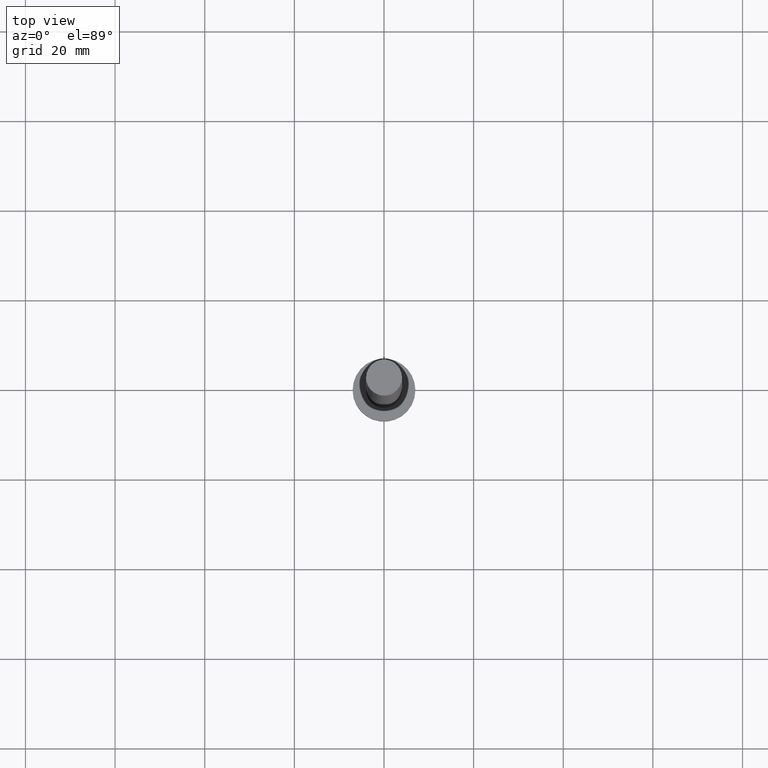
[diagram: clean part render]
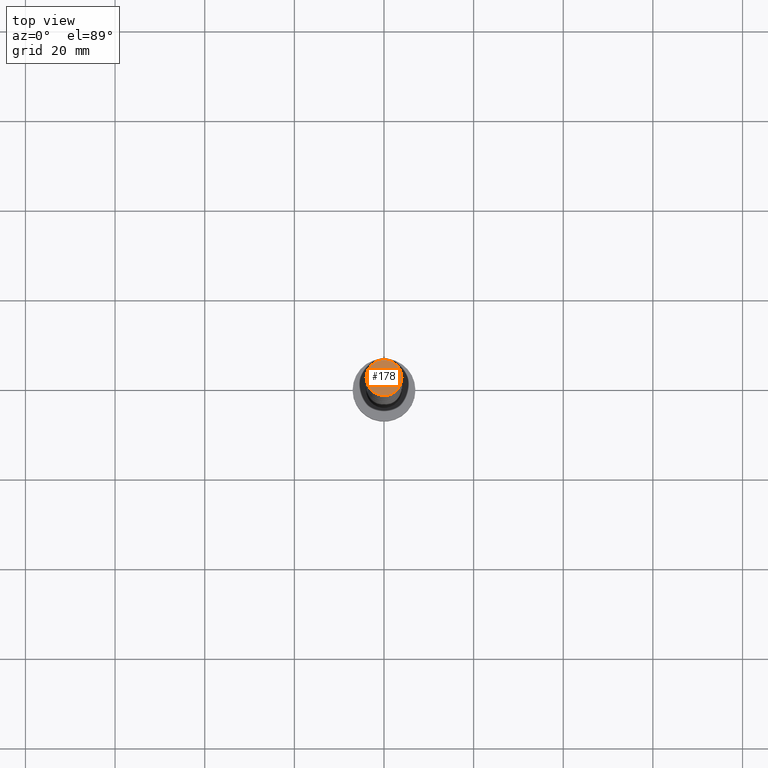
[diagram: same view with one face highlighted and labeled with its STEP entity id]
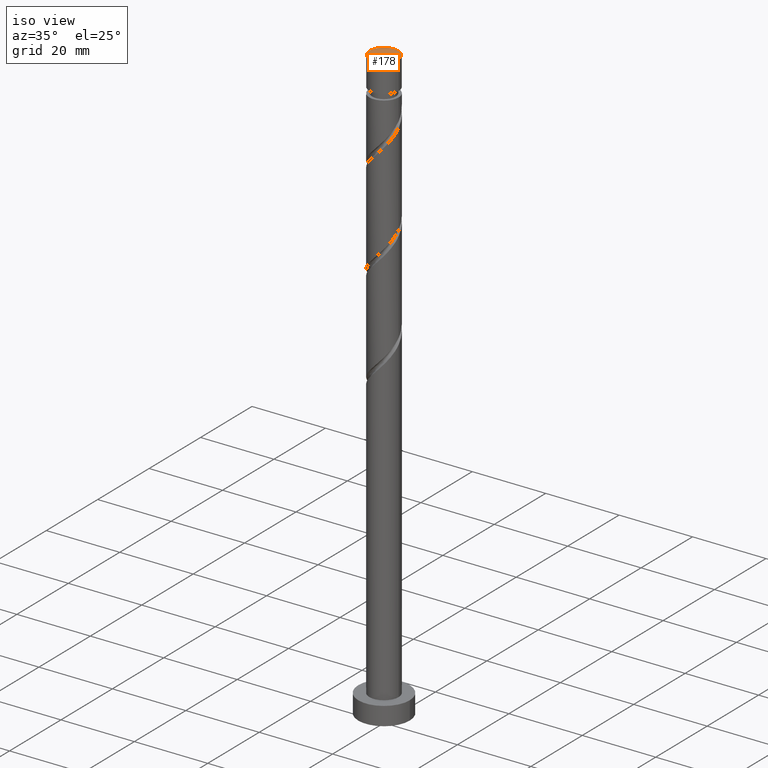
[diagram: same view with one face highlighted and labeled with its STEP entity id]
A machine part, top view. The second image highlights one B-rep face of the part: STEP entity #178.
A second angle (iso view) of the same face is appended — the face is thin or edge-on in the first view.
In plain terms, the highlighted planar face has unit normal (0, 0, 1).
Its self-contained STEP definition (entity closure, byte-faithful):
#178 = ADVANCED_FACE ( 'NONE', ( #541 ), #1055, .T. ) ;
#180 = EDGE_LOOP ( 'NONE', ( #781, #1140 ) ) ;
#244 = AXIS2_PLACEMENT_3D ( 'NONE', #583, #452, #1473 ) ;
#249 = DIRECTION ( 'NONE',  ( 0.000000000000000000, 0.000000000000000000, 1.000000000000000000 ) ) ;
#260 = CARTESIAN_POINT ( 'NONE',  ( 0.000000000000000000, 0.000000000000000000, 162.0000000000000000 ) ) ;
#373 = DIRECTION ( 'NONE',  ( 1.000000000000000000, 0.000000000000000000, 0.000000000000000000 ) ) ;
#381 = CARTESIAN_POINT ( 'NONE',  ( 0.000000000000000000, 0.000000000000000000, 162.0000000000000000 ) ) ;
#411 = CARTESIAN_POINT ( 'NONE',  ( -4.000000000000000000, 0.000000000000000000, 162.0000000000000000 ) ) ;
#452 = DIRECTION ( 'NONE',  ( 0.000000000000000000, 0.000000000000000000, 1.000000000000000000 ) ) ;
#529 = AXIS2_PLACEMENT_3D ( 'NONE', #381, #533, #373 ) ;
#533 = DIRECTION ( 'NONE',  ( 0.000000000000000000, 0.000000000000000000, 1.000000000000000000 ) ) ;
#541 = FACE_OUTER_BOUND ( 'NONE', #180, .T. ) ;
#583 = CARTESIAN_POINT ( 'NONE',  ( 0.000000000000000000, 0.000000000000000000, 162.0000000000000000 ) ) ;
#736 = AXIS2_PLACEMENT_3D ( 'NONE', #260, #249, #786 ) ;
#778 = EDGE_CURVE ( 'NONE', #794, #1487, #1514, .T. ) ;
#781 = ORIENTED_EDGE ( 'NONE', *, *, #1304, .T. ) ;
#786 = DIRECTION ( 'NONE',  ( 1.000000000000000000, 0.000000000000000000, -0.000000000000000000 ) ) ;
#794 = VERTEX_POINT ( 'NONE', #975 ) ;
#975 = CARTESIAN_POINT ( 'NONE',  ( 4.000000000000000000, 4.898587196589412829E-16, 162.0000000000000000 ) ) ;
#1019 = CIRCLE ( 'NONE', #529, 4.000000000000000000 ) ;
#1055 = PLANE ( 'NONE',  #736 ) ;
#1140 = ORIENTED_EDGE ( 'NONE', *, *, #778, .T. ) ;
#1304 = EDGE_CURVE ( 'NONE', #1487, #794, #1019, .T. ) ;
#1473 = DIRECTION ( 'NONE',  ( 1.000000000000000000, 0.000000000000000000, 0.000000000000000000 ) ) ;
#1487 = VERTEX_POINT ( 'NONE', #411 ) ;
#1514 = CIRCLE ( 'NONE', #244, 4.000000000000000000 ) ;